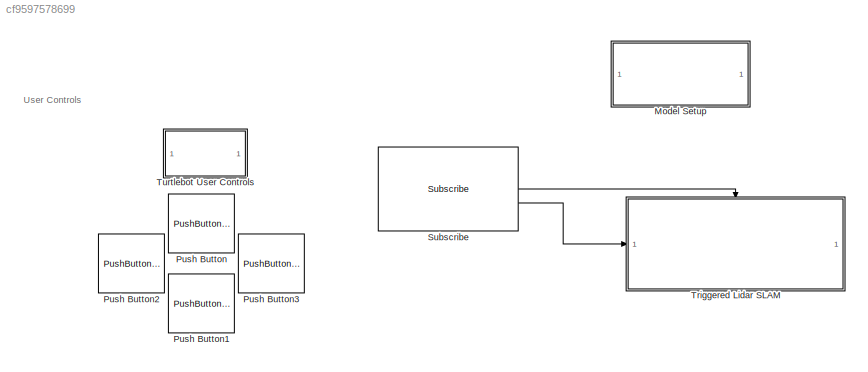
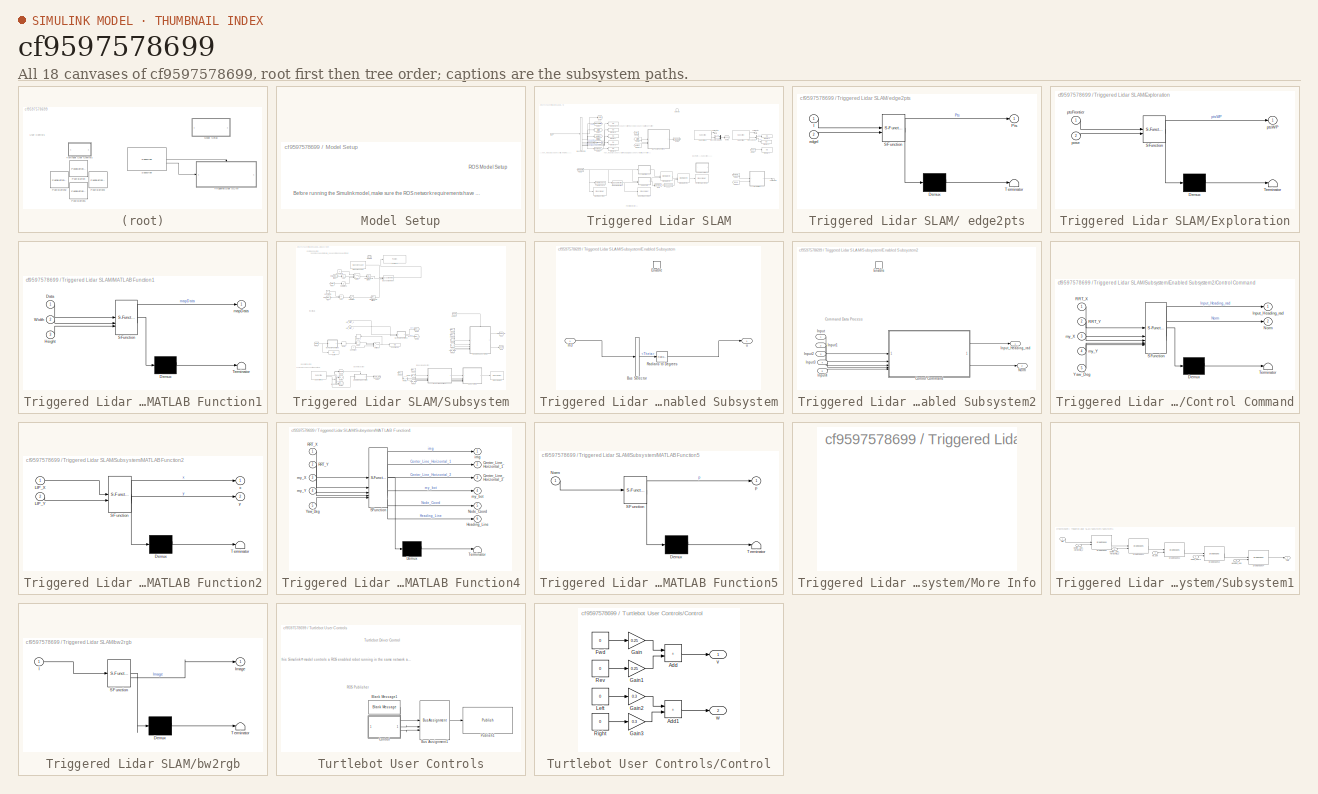
[diagram: thumbnail index - all 18 canvases of the model, root first then tree order]
MODEL slx_cf9597578699
KIND model
CONFIG AbsTol = auto
CONFIG EnableMultiTasking = off
CONFIG FixedStep = auto
CONFIG MaxStep = auto
CONFIG MinStep = auto
CONFIG RelTol = 1e-3
CONFIG SampleTimeConstraint = Unconstrained
CONFIG SolverName = FixedStepAuto
CONFIG StartTime = 0.0
CONFIG StopTime = inf
WORKSPACE source: mxarray member
WORKSPACE SL_ROS_VariableLengthArrays_MaxSizes: object (value not decoded)
BLOCK [SubSystem] Model Setup
BLOCK [PushButtonBlock] Push Button
  ButtonText = Fwd
  OffValue = 0.000000
BLOCK [PushButtonBlock] Push Button1
  ButtonText = Rev
  OffValue = 0.000000
  OnValue = -1
BLOCK [PushButtonBlock] Push Button2
  ButtonText = Left
  OffValue = 0.000000
BLOCK [PushButtonBlock] Push Button3
  ButtonText = Right
  OffValue = 0.000000
  OnValue = -1
BLOCK [Reference] Subscribe  REF=robotlib/Subscribe
  SourceBlock = robotlib/Subscribe
  SourceType = ROS Subscribe
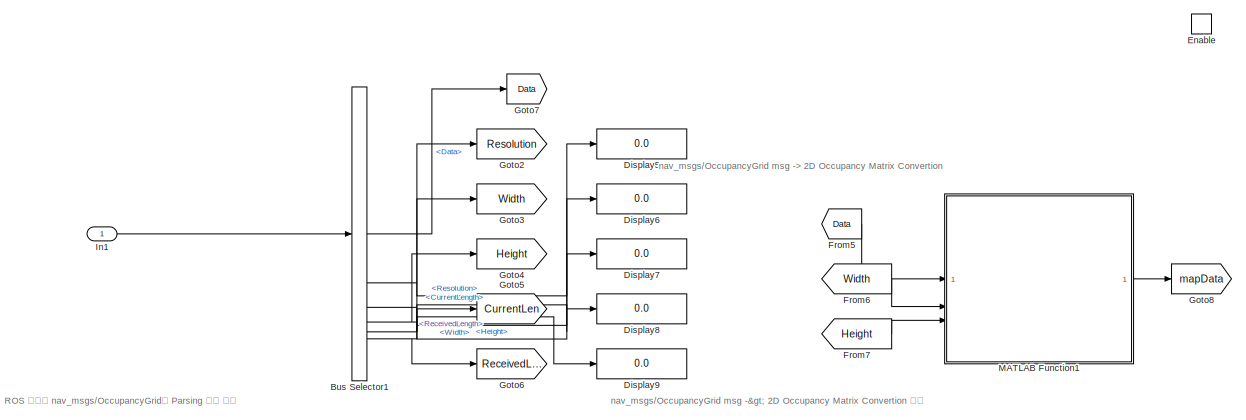
[diagram: Triggered Lidar SLAM - part 1/4, top left region]
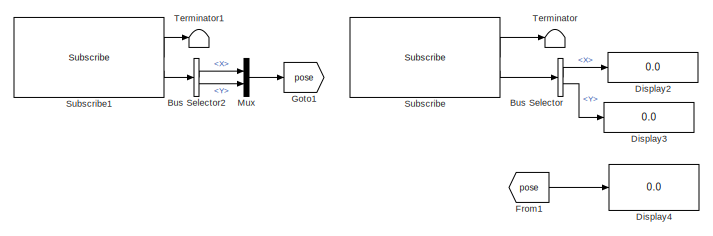
[diagram: Triggered Lidar SLAM - part 2/4, middle right region]
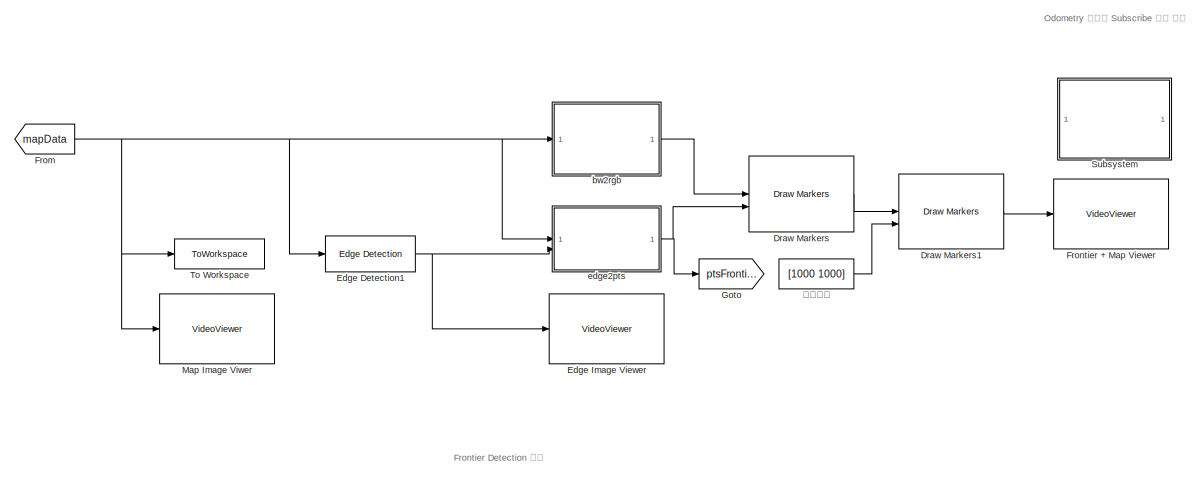
[diagram: Triggered Lidar SLAM - part 3/4, bottom center region]
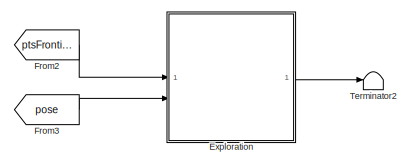
[diagram: Triggered Lidar SLAM - part 4/4, bottom right region]
BLOCK [SubSystem] Triggered Lidar SLAM
BLOCK [SubSystem] Triggered Lidar SLAM/ edge2pts
  ErrorFcn = Stateflow.Translate.translate
  PermitHierarchicalResolution = ExplicitOnly
  SFBlockType = MATLAB Function
  TreatAsAtomicUnit = on
BLOCK [Demux] Triggered Lidar SLAM/ edge2pts/ Demux 
  Outputs = 1
BLOCK [S-Function] Triggered Lidar SLAM/ edge2pts/ SFunction 
  EnableBusSupport = on
  FunctionName = sf_sfun
  PortCounts = [2 2]
  SFcnIsStateOwnerBlock = off
  SFunctionDeploymentMode = off
  Tag = Stateflow S-Function 8
BLOCK [Terminator] Triggered Lidar SLAM/ edge2pts/ Terminator 
BLOCK [Inport] Triggered Lidar SLAM/ edge2pts/I
BLOCK [Outport] Triggered Lidar SLAM/ edge2pts/Pts
BLOCK [Inport] Triggered Lidar SLAM/ edge2pts/edgeI
  Port = 2
BLOCK [BusSelector] Triggered Lidar SLAM/Bus Selector
  OutputSignals = Pose.Pose.Position.X,Pose.Pose.Position.Y
BLOCK [BusSelector] Triggered Lidar SLAM/Bus Selector1
  OutputSignals = Data,Info.Resolution,Info.Width,Info.Height,Data_SL_Info.CurrentLength,Data_SL_Info.ReceivedLength
BLOCK [BusSelector] Triggered Lidar SLAM/Bus Selector2
  OutputSignals = Pose.Position.X,Pose.Position.Y
BLOCK [Display] Triggered Lidar SLAM/Display2
  Decimation = 1
BLOCK [Display] Triggered Lidar SLAM/Display3
  Decimation = 1
BLOCK [Display] Triggered Lidar SLAM/Display4
  Decimation = 1
BLOCK [Display] Triggered Lidar SLAM/Display5
  Decimation = 1
BLOCK [Display] Triggered Lidar SLAM/Display6
  Decimation = 1
BLOCK [Display] Triggered Lidar SLAM/Display7
  Decimation = 1
BLOCK [Display] Triggered Lidar SLAM/Display8
  Decimation = 1
BLOCK [Display] Triggered Lidar SLAM/Display9
  Decimation = 1
BLOCK [Reference] Triggered Lidar SLAM/Draw Markers  REF=visiontextngfix/Draw Markers
  SourceBlock = visiontextngfix/Draw Markers
  SourceType = Draw Markers
BLOCK [Reference] Triggered Lidar SLAM/Draw Markers1  REF=visiontextngfix/Draw Markers
  SourceBlock = visiontextngfix/Draw Markers
  SourceType = Draw Markers
BLOCK [Reference] Triggered Lidar SLAM/Edge Detection1  REF=visionanalysis/Edge Detection
  SourceBlock = visionanalysis/Edge Detection
  SourceType = Edge Detection
BLOCK [VideoViewer] Triggered Lidar SLAM/Edge Image Viewer
  FigPos = [9.8 778 470.4 189.6]
  ScopeSpecificationString = vipscopes.VideoViewerScopeCfg('CurrentConfiguration', extmgr.ConfigurationSet(extmgr.Configuration('Core','General UI',true),extmgr.Configuration('Core','Source UI',true),extmgr.Configuration('Sources','WiredSimulink',true),extmgr.Configuration('Visuals','Video',true),extmgr.Configuration('Tools','Image Navigation Tools',true,'Magnification',4),extmgr.Configuration('Tools','Image Tool',true),extmg...<+122ch>
  colormapValue = gray(256)
BLOCK [EnablePort] Triggered Lidar SLAM/Enable
  PropagateVarSize = During execution
BLOCK [SubSystem] Triggered Lidar SLAM/Exploration
  ErrorFcn = Stateflow.Translate.translate
  PermitHierarchicalResolution = ExplicitOnly
  SFBlockType = MATLAB Function
  TreatAsAtomicUnit = on
BLOCK [Demux] Triggered Lidar SLAM/Exploration/ Demux 
  Outputs = 1
BLOCK [S-Function] Triggered Lidar SLAM/Exploration/ SFunction 
  EnableBusSupport = on
  FunctionName = sf_sfun
  PortCounts = [2 2]
  SFcnIsStateOwnerBlock = off
  SFunctionDeploymentMode = off
  Tag = Stateflow S-Function 1
BLOCK [Terminator] Triggered Lidar SLAM/Exploration/ Terminator 
BLOCK [Inport] Triggered Lidar SLAM/Exploration/pose
  Port = 2
BLOCK [Inport] Triggered Lidar SLAM/Exploration/ptsFrontier
BLOCK [Outport] Triggered Lidar SLAM/Exploration/ptsWP
BLOCK [From] Triggered Lidar SLAM/From
  GotoTag = mapData
BLOCK [From] Triggered Lidar SLAM/From1
  GotoTag = pose
BLOCK [From] Triggered Lidar SLAM/From2
  GotoTag = ptsFrontier
BLOCK [From] Triggered Lidar SLAM/From3
  GotoTag = pose
BLOCK [From] Triggered Lidar SLAM/From5
  GotoTag = Data
BLOCK [From] Triggered Lidar SLAM/From6
  GotoTag = Width
BLOCK [From] Triggered Lidar SLAM/From7
  GotoTag = Height
BLOCK [VideoViewer] Triggered Lidar SLAM/Frontier + Map Viewer
  FigPos = [762.6 702.8 577.6 476.8]
  ScopeSpecificationString = vipscopes.VideoViewerScopeCfg('CurrentConfiguration', extmgr.ConfigurationSet(extmgr.Configuration('Core','General UI',true),extmgr.Configuration('Core','Source UI',true),extmgr.Configuration('Sources','WiredSimulink',true),extmgr.Configuration('Visuals','Video',true),extmgr.Configuration('Tools','Image Navigation Tools',true,'Magnification',2.25900843523551),extmgr.Configuration('Tools','Image To...<+142ch>
  colormapValue = gray(256)
BLOCK [Goto] Triggered Lidar SLAM/Goto
  GotoTag = ptsFrontier
BLOCK [Goto] Triggered Lidar SLAM/Goto1
  GotoTag = pose
BLOCK [Goto] Triggered Lidar SLAM/Goto2
  GotoTag = Resolution
BLOCK [Goto] Triggered Lidar SLAM/Goto3
  GotoTag = Width
BLOCK [Goto] Triggered Lidar SLAM/Goto4
  GotoTag = Height
BLOCK [Goto] Triggered Lidar SLAM/Goto5
  GotoTag = CurrentLen
BLOCK [Goto] Triggered Lidar SLAM/Goto6
  GotoTag = ReceivedLen
BLOCK [Goto] Triggered Lidar SLAM/Goto7
  GotoTag = Data
BLOCK [Goto] Triggered Lidar SLAM/Goto8
  GotoTag = mapData
BLOCK [Inport] Triggered Lidar SLAM/In1
BLOCK [SubSystem] Triggered Lidar SLAM/MATLAB Function1
  ErrorFcn = Stateflow.Translate.translate
  LibrarySourceBlock = simulink/User-Defined\nFunctions/MATLAB Function
  PermitHierarchicalResolution = ExplicitOnly
  SFBlockType = MATLAB Function
  TreatAsAtomicUnit = on
BLOCK [Demux] Triggered Lidar SLAM/MATLAB Function1/ Demux 
  Outputs = 1
BLOCK [S-Function] Triggered Lidar SLAM/MATLAB Function1/ SFunction 
  EnableBusSupport = on
  FunctionName = sf_sfun
  PortCounts = [3 2]
  SFcnIsStateOwnerBlock = off
  SFunctionDeploymentMode = off
  Tag = Stateflow S-Function 2
BLOCK [Terminator] Triggered Lidar SLAM/MATLAB Function1/ Terminator 
BLOCK [Inport] Triggered Lidar SLAM/MATLAB Function1/Data
BLOCK [Inport] Triggered Lidar SLAM/MATLAB Function1/Height
  Port = 3
BLOCK [Inport] Triggered Lidar SLAM/MATLAB Function1/Width
  Port = 2
BLOCK [Outport] Triggered Lidar SLAM/MATLAB Function1/mapData
BLOCK [VideoViewer] Triggered Lidar SLAM/Map Image Viwer
  FigPos = [41.8 1064.4 794.4 767.2]
  ScopeSpecificationString = vipscopes.VideoViewerScopeCfg('CurrentConfiguration', extmgr.ConfigurationSet(extmgr.Configuration('Core','General UI',true),extmgr.Configuration('Core','Source UI',true),extmgr.Configuration('Sources','WiredSimulink',true),extmgr.Configuration('Visuals','Video',true),extmgr.Configuration('Tools','Image Navigation Tools',true,'Magnification',4),extmgr.Configuration('Tools','Image Tool',true),extmg...<+127ch>
  colormapValue = gray(256)
BLOCK [Mux] Triggered Lidar SLAM/Mux
  DisplayOption = bar
  Inputs = 2
BLOCK [Reference] Triggered Lidar SLAM/Subscribe  REF=robotlib/Subscribe
  SourceBlock = robotlib/Subscribe
  SourceType = ROS Subscribe
BLOCK [Reference] Triggered Lidar SLAM/Subscribe1  REF=robotlib/Subscribe
  SourceBlock = robotlib/Subscribe
  SourceType = ROS Subscribe
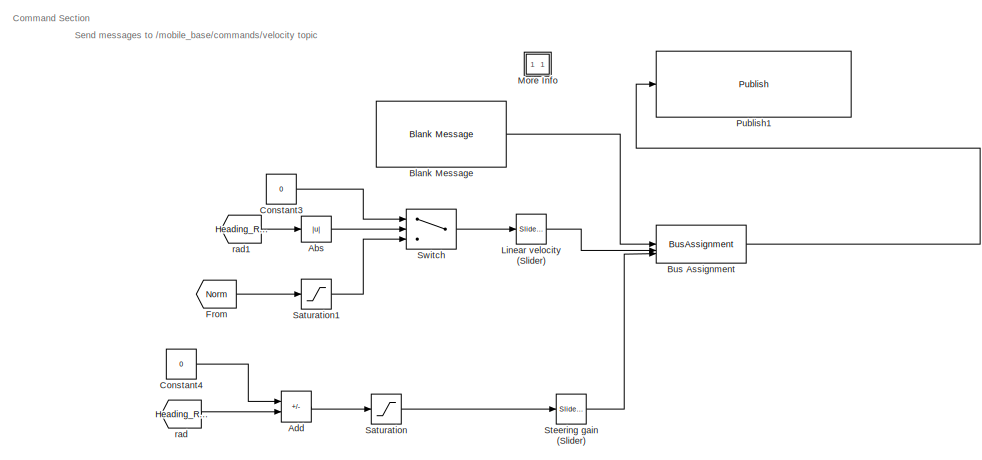
[diagram: Triggered Lidar SLAM/Subsystem - part 1/4, top left region]
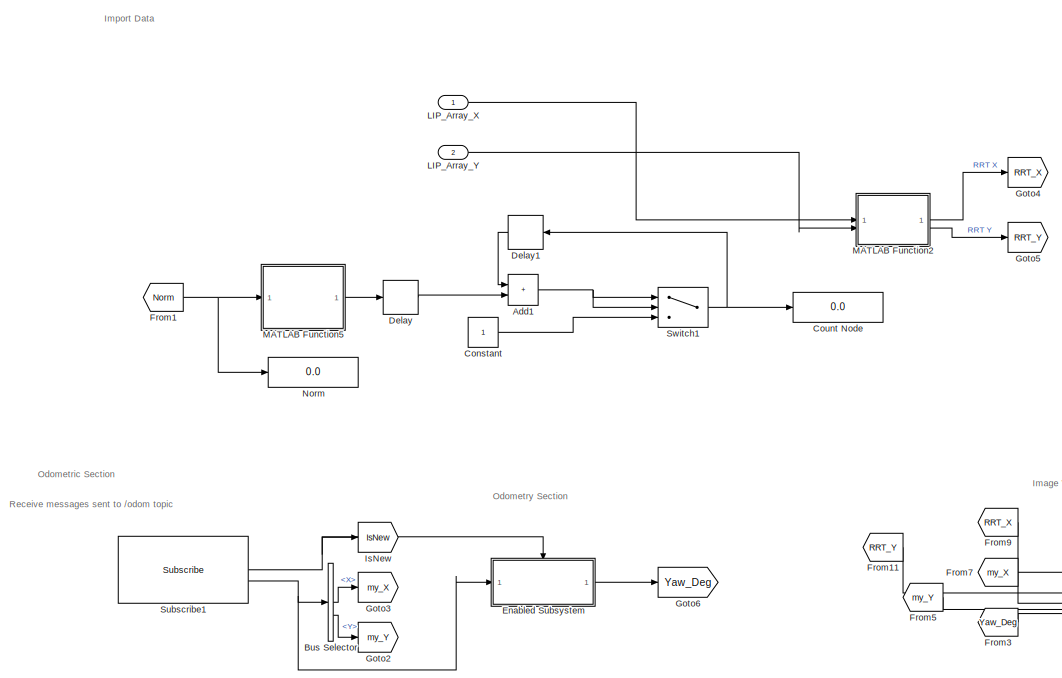
[diagram: Triggered Lidar SLAM/Subsystem - part 2/4, bottom left region]
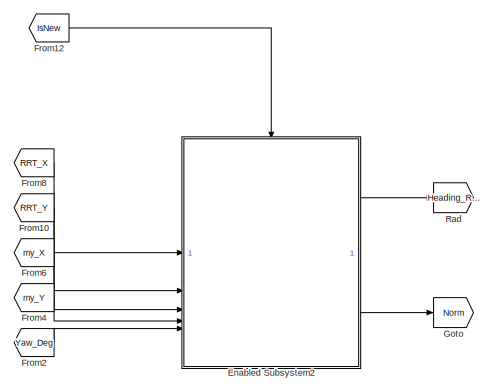
[diagram: Triggered Lidar SLAM/Subsystem - part 3/4, middle right region]
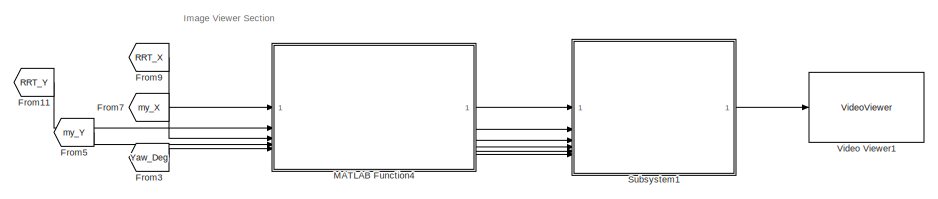
[diagram: Triggered Lidar SLAM/Subsystem - part 4/4, bottom right region]
BLOCK [SubSystem] Triggered Lidar SLAM/Subsystem
  Commented = on
BLOCK [Abs] Triggered Lidar SLAM/Subsystem/Abs
  SaturateOnIntegerOverflow = off
BLOCK [Sum] Triggered Lidar SLAM/Subsystem/Add
  IconShape = rectangular
  Inputs = +-
BLOCK [Sum] Triggered Lidar SLAM/Subsystem/Add1
  IconShape = rectangular
BLOCK [Reference] Triggered Lidar SLAM/Subsystem/Blank Message  REF=robotlib/Blank Message
  SourceBlock = robotlib/Blank Message
  SourceType = ROS Blank Message
BLOCK [BusAssignment] Triggered Lidar SLAM/Subsystem/Bus Assignment
  AssignedSignals = Linear.X,Angular.Z
  DialogController = Simulink.DDGSource_BusAssignment
BLOCK [BusSelector] Triggered Lidar SLAM/Subsystem/Bus Selector
  DialogController = Simulink.DDGSource_BusSelector
  OutputSignals = X,Y
BLOCK [Constant] Triggered Lidar SLAM/Subsystem/Constant
BLOCK [Constant] Triggered Lidar SLAM/Subsystem/Constant3
  NameLocation = left
  Value = 0
BLOCK [Constant] Triggered Lidar SLAM/Subsystem/Constant4
  Value = 0
BLOCK [Display] Triggered Lidar SLAM/Subsystem/Count Node
  Decimation = 1
BLOCK [Delay] Triggered Lidar SLAM/Subsystem/Delay
  DelayLength = 1
  InputPortMap = u0
BLOCK [Delay] Triggered Lidar SLAM/Subsystem/Delay1
  DelayLength = 1
  InputPortMap = u0
  NameLocation = top
BLOCK [SubSystem] Triggered Lidar SLAM/Subsystem/Enabled Subsystem
  TreatAsAtomicUnit = on
BLOCK [BusSelector] Triggered Lidar SLAM/Subsystem/Enabled Subsystem/Bus Selector
  OutputSignals = Theta
BLOCK [EnablePort] Triggered Lidar SLAM/Subsystem/Enabled Subsystem/Enable
BLOCK [Inport] Triggered Lidar SLAM/Subsystem/Enabled Subsystem/In3
BLOCK [Reference] Triggered Lidar SLAM/Subsystem/Enabled Subsystem/Radians to Degrees  REF=simulink_extras/Transformations/Radians
to Degrees
  SourceBlock = simulink_extras/Transformations/Radians\nto Degrees
  SourceType = RadiansToDegrees
BLOCK [Outport] Triggered Lidar SLAM/Subsystem/Enabled Subsystem/u
BLOCK [SubSystem] Triggered Lidar SLAM/Subsystem/Enabled Subsystem2
  TreatAsAtomicUnit = on
BLOCK [SubSystem] Triggered Lidar SLAM/Subsystem/Enabled Subsystem2/Control Command
  ErrorFcn = Stateflow.Translate.translate
  LibrarySourceBlock = simulink/User-Defined\nFunctions/MATLAB Function
  PermitHierarchicalResolution = ExplicitOnly
  SFBlockType = MATLAB Function
  TreatAsAtomicUnit = on
BLOCK [Demux] Triggered Lidar SLAM/Subsystem/Enabled Subsystem2/Control Command/ Demux 
  Outputs = 1
BLOCK [S-Function] Triggered Lidar SLAM/Subsystem/Enabled Subsystem2/Control Command/ SFunction 
  EnableBusSupport = on
  FunctionName = sf_sfun
  PortCounts = [5 3]
  SFcnIsStateOwnerBlock = off
  SFunctionDeploymentMode = off
  Tag = Stateflow S-Function 3
BLOCK [Terminator] Triggered Lidar SLAM/Subsystem/Enabled Subsystem2/Control Command/ Terminator 
BLOCK [Outport] Triggered Lidar SLAM/Subsystem/Enabled Subsystem2/Control Command/Input_Heading_rad
BLOCK [Outport] Triggered Lidar SLAM/Subsystem/Enabled Subsystem2/Control Command/Norm
  Port = 2
BLOCK [Inport] Triggered Lidar SLAM/Subsystem/Enabled Subsystem2/Control Command/RRT_X
BLOCK [Inport] Triggered Lidar SLAM/Subsystem/Enabled Subsystem2/Control Command/RRT_Y
  Port = 2
BLOCK [Inport] Triggered Lidar SLAM/Subsystem/Enabled Subsystem2/Control Command/Yaw_Deg
  Port = 5
BLOCK [Inport] Triggered Lidar SLAM/Subsystem/Enabled Subsystem2/Control Command/my_X
  Port = 3
BLOCK [Inport] Triggered Lidar SLAM/Subsystem/Enabled Subsystem2/Control Command/my_Y
  Port = 4
BLOCK [EnablePort] Triggered Lidar SLAM/Subsystem/Enabled Subsystem2/Enable
BLOCK [Inport] Triggered Lidar SLAM/Subsystem/Enabled Subsystem2/Input
BLOCK [Inport] Triggered Lidar SLAM/Subsystem/Enabled Subsystem2/Input1
  Port = 2
BLOCK [Inport] Triggered Lidar SLAM/Subsystem/Enabled Subsystem2/Input2
  Port = 3
BLOCK [Inport] Triggered Lidar SLAM/Subsystem/Enabled Subsystem2/Input3
  Port = 4
BLOCK [Inport] Triggered Lidar SLAM/Subsystem/Enabled Subsystem2/Input4
  Port = 5
BLOCK [Outport] Triggered Lidar SLAM/Subsystem/Enabled Subsystem2/Input_Heading_rad
BLOCK [Outport] Triggered Lidar SLAM/Subsystem/Enabled Subsystem2/Norm
  Port = 2
BLOCK [From] Triggered Lidar SLAM/Subsystem/From
  GotoTag = Norm
BLOCK [From] Triggered Lidar SLAM/Subsystem/From1
  GotoTag = Norm
BLOCK [From] Triggered Lidar SLAM/Subsystem/From10
  GotoTag = RRT_Y
BLOCK [From] Triggered Lidar SLAM/Subsystem/From11
  GotoTag = RRT_Y
BLOCK [From] Triggered Lidar SLAM/Subsystem/From12
  GotoTag = IsNew
BLOCK [From] Triggered Lidar SLAM/Subsystem/From2
  GotoTag = Yaw_Deg
BLOCK [From] Triggered Lidar SLAM/Subsystem/From3
  GotoTag = Yaw_Deg
BLOCK [From] Triggered Lidar SLAM/Subsystem/From4
  GotoTag = my_Y
BLOCK [From] Triggered Lidar SLAM/Subsystem/From5
  GotoTag = my_Y
BLOCK [From] Triggered Lidar SLAM/Subsystem/From6
  GotoTag = my_X
BLOCK [From] Triggered Lidar SLAM/Subsystem/From7
  GotoTag = my_X
BLOCK [From] Triggered Lidar SLAM/Subsystem/From8
  GotoTag = RRT_X
BLOCK [From] Triggered Lidar SLAM/Subsystem/From9
  GotoTag = RRT_X
BLOCK [Goto] Triggered Lidar SLAM/Subsystem/Goto
  GotoTag = Norm
BLOCK [Goto] Triggered Lidar SLAM/Subsystem/Goto2
  GotoTag = my_Y
BLOCK [Goto] Triggered Lidar SLAM/Subsystem/Goto3
  GotoTag = my_X
BLOCK [Goto] Triggered Lidar SLAM/Subsystem/Goto4
  GotoTag = RRT_X
BLOCK [Goto] Triggered Lidar SLAM/Subsystem/Goto5
  GotoTag = RRT_Y
BLOCK [Goto] Triggered Lidar SLAM/Subsystem/Goto6
  GotoTag = Yaw_Deg
BLOCK [Goto] Triggered Lidar SLAM/Subsystem/IsNew
  GotoTag = IsNew
BLOCK [Inport] Triggered Lidar SLAM/Subsystem/LIP_Array_X
BLOCK [Inport] Triggered Lidar SLAM/Subsystem/LIP_Array_Y
  Port = 2
BLOCK [Reference] Triggered Lidar SLAM/Subsystem/Linear velocity (Slider)  REF=simulink/Math
Operations/Slider
Gain
  SourceBlock = simulink/Math\nOperations/Slider\nGain
  SourceType = Slider Gain
BLOCK [SubSystem] Triggered Lidar SLAM/Subsystem/MATLAB Function2
  ErrorFcn = Stateflow.Translate.translate
  LibrarySourceBlock = simulink/User-Defined\nFunctions/MATLAB Function
  PermitHierarchicalResolution = ExplicitOnly
  SFBlockType = MATLAB Function
  TreatAsAtomicUnit = on
BLOCK [Demux] Triggered Lidar SLAM/Subsystem/MATLAB Function2/ Demux 
  Outputs = 1
BLOCK [S-Function] Triggered Lidar SLAM/Subsystem/MATLAB Function2/ SFunction 
  EnableBusSupport = on
  FunctionName = sf_sfun
  PortCounts = [2 3]
  SFcnIsStateOwnerBlock = off
  SFunctionDeploymentMode = off
  Tag = Stateflow S-Function 4
BLOCK [Terminator] Triggered Lidar SLAM/Subsystem/MATLAB Function2/ Terminator 
BLOCK [Inport] Triggered Lidar SLAM/Subsystem/MATLAB Function2/LIP_X
BLOCK [Inport] Triggered Lidar SLAM/Subsystem/MATLAB Function2/LIP_Y
  Port = 2
BLOCK [Outport] Triggered Lidar SLAM/Subsystem/MATLAB Function2/x
BLOCK [Outport] Triggered Lidar SLAM/Subsystem/MATLAB Function2/y
  Port = 2
BLOCK [SubSystem] Triggered Lidar SLAM/Subsystem/MATLAB Function4
  ErrorFcn = Stateflow.Translate.translate
  LibrarySourceBlock = simulink/User-Defined\nFunctions/MATLAB Function
  PermitHierarchicalResolution = ExplicitOnly
  SFBlockType = MATLAB Function
  TreatAsAtomicUnit = on
BLOCK [Demux] Triggered Lidar SLAM/Subsystem/MATLAB Function4/ Demux 
  Outputs = 1
BLOCK [S-Function] Triggered Lidar SLAM/Subsystem/MATLAB Function4/ SFunction 
  EnableBusSupport = on
  FunctionName = sf_sfun
  PortCounts = [5 7]
  SFcnIsStateOwnerBlock = off
  SFunctionDeploymentMode = off
  Tag = Stateflow S-Function 6
BLOCK [Terminator] Triggered Lidar SLAM/Subsystem/MATLAB Function4/ Terminator 
BLOCK [Outport] Triggered Lidar SLAM/Subsystem/MATLAB Function4/Center_Line_Horizontal_1
  Port = 2
BLOCK [Outport] Triggered Lidar SLAM/Subsystem/MATLAB Function4/Center_Line_Horizontal_2
  Port = 3
BLOCK [Outport] Triggered Lidar SLAM/Subsystem/MATLAB Function4/Heading_Line
  Port = 6
BLOCK [Outport] Triggered Lidar SLAM/Subsystem/MATLAB Function4/Node_Coord
  Port = 5
BLOCK [Inport] Triggered Lidar SLAM/Subsystem/MATLAB Function4/RRT_X
BLOCK [Inport] Triggered Lidar SLAM/Subsystem/MATLAB Function4/RRT_Y
  Port = 2
BLOCK [Inport] Triggered Lidar SLAM/Subsystem/MATLAB Function4/Yaw_Deg
  Port = 5
BLOCK [Outport] Triggered Lidar SLAM/Subsystem/MATLAB Function4/img
BLOCK [Inport] Triggered Lidar SLAM/Subsystem/MATLAB Function4/my_X
  Port = 3
BLOCK [Inport] Triggered Lidar SLAM/Subsystem/MATLAB Function4/my_Y
  Port = 4
BLOCK [Outport] Triggered Lidar SLAM/Subsystem/MATLAB Function4/my_bot
  Port = 4
BLOCK [SubSystem] Triggered Lidar SLAM/Subsystem/MATLAB Function5
  ErrorFcn = Stateflow.Translate.translate
  LibrarySourceBlock = simulink/User-Defined\nFunctions/MATLAB Function
  PermitHierarchicalResolution = ExplicitOnly
  SFBlockType = MATLAB Function
  TreatAsAtomicUnit = on
BLOCK [Demux] Triggered Lidar SLAM/Subsystem/MATLAB Function5/ Demux 
  Outputs = 1
BLOCK [S-Function] Triggered Lidar SLAM/Subsystem/MATLAB Function5/ SFunction 
  EnableBusSupport = on
  FunctionName = sf_sfun
  PortCounts = [1 2]
  SFcnIsStateOwnerBlock = off
  SFunctionDeploymentMode = off
  Tag = Stateflow S-Function 7
BLOCK [Terminator] Triggered Lidar SLAM/Subsystem/MATLAB Function5/ Terminator 
BLOCK [Inport] Triggered Lidar SLAM/Subsystem/MATLAB Function5/Norm
BLOCK [Outport] Triggered Lidar SLAM/Subsystem/MATLAB Function5/p
BLOCK [SubSystem] Triggered Lidar SLAM/Subsystem/More Info
  OpenFcn = showdemo(bdroot(gcb))
BLOCK [Display] Triggered Lidar SLAM/Subsystem/Norm
  Decimation = 1
BLOCK [Reference] Triggered Lidar SLAM/Subsystem/Publish1  REF=robotlib/Publish
  SourceBlock = robotlib/Publish
  SourceType = ROS Publish
BLOCK [Goto] Triggered Lidar SLAM/Subsystem/Rad
  GotoTag = Heading_Rad
BLOCK [Saturate] Triggered Lidar SLAM/Subsystem/Saturation
  LowerLimit = -0.3
  UpperLimit = 0.3
BLOCK [Saturate] Triggered Lidar SLAM/Subsystem/Saturation1
  LowerLimit = -0.3
  UpperLimit = 0.3
BLOCK [Reference] Triggered Lidar SLAM/Subsystem/Steering gain (Slider)  REF=simulink/Math
Operations/Slider
Gain
  SourceBlock = simulink/Math\nOperations/Slider\nGain
  SourceType = Slider Gain
BLOCK [Reference] Triggered Lidar SLAM/Subsystem/Subscribe1  REF=robotlib/Subscribe
  SourceBlock = robotlib/Subscribe
  SourceType = ROS Subscribe
BLOCK [SubSystem] Triggered Lidar SLAM/Subsystem/Subsystem1
BLOCK [Inport] Triggered Lidar SLAM/Subsystem/Subsystem1/Center_Line_Horizontal_1
  Port = 2
BLOCK [Inport] Triggered Lidar SLAM/Subsystem/Subsystem1/Center_Line_Horizontal_2
  Port = 3
BLOCK [Reference] Triggered Lidar SLAM/Subsystem/Subsystem1/Draw Shapes  REF=visiontextngfix/Draw Shapes
  SourceBlock = visiontextngfix/Draw Shapes
  SourceType = Draw Shapes
BLOCK [Reference] Triggered Lidar SLAM/Subsystem/Subsystem1/Draw Shapes1  REF=visiontextngfix/Draw Shapes
  SourceBlock = visiontextngfix/Draw Shapes
  SourceType = Draw Shapes
BLOCK [Reference] Triggered Lidar SLAM/Subsystem/Subsystem1/Draw Shapes2  REF=visiontextngfix/Draw Shapes
  SourceBlock = visiontextngfix/Draw Shapes
  SourceType = Draw Shapes
BLOCK [Reference] Triggered Lidar SLAM/Subsystem/Subsystem1/Draw Shapes3  REF=visiontextngfix/Draw Shapes
  SourceBlock = visiontextngfix/Draw Shapes
  SourceType = Draw Shapes
BLOCK [Reference] Triggered Lidar SLAM/Subsystem/Subsystem1/Draw Shapes4  REF=visiontextngfix/Draw Shapes
  SourceBlock = visiontextngfix/Draw Shapes
  SourceType = Draw Shapes
BLOCK [Inport] Triggered Lidar SLAM/Subsystem/Subsystem1/Heading_Line
  Port = 6
BLOCK [Inport] Triggered Lidar SLAM/Subsystem/Subsystem1/Node_Coord
  Port = 5
BLOCK [Outport] Triggered Lidar SLAM/Subsystem/Subsystem1/Out1
BLOCK [Inport] Triggered Lidar SLAM/Subsystem/Subsystem1/img
  NameLocation = right
BLOCK [Inport] Triggered Lidar SLAM/Subsystem/Subsystem1/my_bot
  Port = 4
BLOCK [Switch] Triggered Lidar SLAM/Subsystem/Switch
  InputSameDT = off
  SaturateOnIntegerOverflow = off
  Threshold = 5*(pi/180)
BLOCK [Switch] Triggered Lidar SLAM/Subsystem/Switch1
  Criteria = u2 > Threshold
  InputSameDT = off
  SaturateOnIntegerOverflow = off
  Threshold = 1
BLOCK [VideoViewer] Triggered Lidar SLAM/Subsystem/Video Viewer1
  Commented = on
  FigPos = [755 1049 776 766]
  ScopeSpecificationString = vipscopes.VideoViewerScopeCfg('CurrentConfiguration', extmgr.ConfigurationSet(extmgr.Configuration('Core','General UI',true),extmgr.Configuration('Core','Source UI',true),extmgr.Configuration('Sources','WiredSimulink',true),extmgr.Configuration('Visuals','Video',true),extmgr.Configuration('Tools','Image Navigation Tools',true,'Magnification',8),extmgr.Configuration('Tools','Image Tool',true),extmg...<+92ch>
  colormapValue = gray(256)
BLOCK [From] Triggered Lidar SLAM/Subsystem/rad
  GotoTag = Heading_Rad
BLOCK [From] Triggered Lidar SLAM/Subsystem/rad1
  GotoTag = Heading_Rad
BLOCK [Terminator] Triggered Lidar SLAM/Terminator
BLOCK [Terminator] Triggered Lidar SLAM/Terminator1
BLOCK [Terminator] Triggered Lidar SLAM/Terminator2
BLOCK [ToWorkspace] Triggered Lidar SLAM/To Workspace
  FixptAsFi = on
  MaxDataPoints = inf
  SampleTime = -1
  SaveFormat = Structure With Time
  VariableName = simout
BLOCK [SubSystem] Triggered Lidar SLAM/bw2rgb
  ErrorFcn = Stateflow.Translate.translate
  PermitHierarchicalResolution = ExplicitOnly
  SFBlockType = MATLAB Function
  TreatAsAtomicUnit = on
BLOCK [Demux] Triggered Lidar SLAM/bw2rgb/ Demux 
  Outputs = 1
BLOCK [S-Function] Triggered Lidar SLAM/bw2rgb/ SFunction 
  EnableBusSupport = on
  FunctionName = sf_sfun
  PortCounts = [1 2]
  SFcnIsStateOwnerBlock = off
  SFunctionDeploymentMode = off
  Tag = Stateflow S-Function 5
BLOCK [Terminator] Triggered Lidar SLAM/bw2rgb/ Terminator 
BLOCK [Inport] Triggered Lidar SLAM/bw2rgb/I
BLOCK [Outport] Triggered Lidar SLAM/bw2rgb/Image
BLOCK [Constant] Triggered Lidar SLAM/테스트용
  Value = [1000 1000]
BLOCK [SubSystem] Turtlebot User Controls
BLOCK [Reference] Turtlebot User Controls/Blank Message1  REF=robotlib/Blank Message
  SourceBlock = robotlib/Blank Message
  SourceType = ROS Blank Message
BLOCK [BusAssignment] Turtlebot User Controls/Bus Assignment1
  AssignedSignals = Linear.X,Angular.Z
  NameLocation = top
BLOCK [SubSystem] Turtlebot User Controls/Control
BLOCK [Sum] Turtlebot User Controls/Control/Add
  IconShape = rectangular
BLOCK [Sum] Turtlebot User Controls/Control/Add1
  IconShape = rectangular
BLOCK [Constant] Turtlebot User Controls/Control/Fwd
  Value = 0
BLOCK [Gain] Turtlebot User Controls/Control/Gain
  Gain = 0.25
BLOCK [Gain] Turtlebot User Controls/Control/Gain1
  Gain = 0.25
BLOCK [Gain] Turtlebot User Controls/Control/Gain2
  Gain = 0.3
BLOCK [Gain] Turtlebot User Controls/Control/Gain3
  Gain = 0.3
BLOCK [Constant] Turtlebot User Controls/Control/Left
  Value = 0
BLOCK [Constant] Turtlebot User Controls/Control/Rev
  Value = 0
BLOCK [Constant] Turtlebot User Controls/Control/Right
  Value = 0
BLOCK [Outport] Turtlebot User Controls/Control/v
BLOCK [Outport] Turtlebot User Controls/Control/w
  Port = 2
BLOCK [Reference] Turtlebot User Controls/Publish1  REF=robotlib/Publish
  SourceBlock = robotlib/Publish
  SourceType = ROS Publish
ANNOTATION (root): User Controls
ANNOTATION Model Setup: Before running the Simulink model, make sure the ROS network requirements have been set appropriately through the Simulink Toolstrip. Note that setting a Node Host IP address is optional and depends on the computer setup.
ANNOTATION Model Setup: ROS Model Setup
ANNOTATION Triggered Lidar SLAM: Odometry 정보를 Subscribe 하는 부분
ANNOTATION Triggered Lidar SLAM: ROS 메시지 nav_msgs/OccupancyGrid를 Parsing 하는 부분
ANNOTATION Triggered Lidar SLAM: nav_msgs/OccupancyGrid msg -> 2D Occupancy Matrix Convertion 부분
ANNOTATION Triggered Lidar SLAM: Frontier Detection 부분
ANNOTATION Triggered Lidar SLAM: nav_msgs/OccupancyGrid msg -> 2D Occupancy Matrix Convertion
ANNOTATION Triggered Lidar SLAM/Subsystem: Receive messages sent to /odom topic
ANNOTATION Triggered Lidar SLAM/Subsystem: Send messages to /mobile_base/commands/velocity topic
ANNOTATION Triggered Lidar SLAM/Subsystem: Command Section
ANNOTATION Triggered Lidar SLAM/Subsystem: Image Viewer Section
ANNOTATION Triggered Lidar SLAM/Subsystem: Import Data
ANNOTATION Triggered Lidar SLAM/Subsystem: Odometric Section
ANNOTATION Triggered Lidar SLAM/Subsystem: Odometry Section
ANNOTATION Triggered Lidar SLAM/Subsystem/Enabled Subsystem2: Command Data Process
ANNOTATION Turtlebot User Controls: This Simulink® model controls a ROS enabled robot running in the same network as the host computer. The model sets the robot /cmd_vel topic interactively using dashboard buttons to drive the robot around a map with the intent of recording lidar scans to later build an environment map. To learn more visit the documentation examples for interacting with ROS using Simulink
ANNOTATION Turtlebot User Controls: Turtlebot Driver Control
ANNOTATION Turtlebot User Controls: ROS Publisher
LINE Subscribe:1 -> Triggered Lidar SLAM:enable
LINE Subscribe:2 -> Triggered Lidar SLAM:1
NET Triggered Lidar SLAM/ edge2pts:1 -> Triggered Lidar SLAM/Draw Markers:2, Triggered Lidar SLAM/Goto:1
LINE Triggered Lidar SLAM/Bus Selector1:1 -> Triggered Lidar SLAM/Goto7:1
NET Triggered Lidar SLAM/Bus Selector1:2 -> Triggered Lidar SLAM/Display5:1, Triggered Lidar SLAM/Goto2:1
NET Triggered Lidar SLAM/Bus Selector1:3 -> Triggered Lidar SLAM/Display6:1, Triggered Lidar SLAM/Goto3:1
NET Triggered Lidar SLAM/Bus Selector1:4 -> Triggered Lidar SLAM/Display7:1, Triggered Lidar SLAM/Goto4:1
NET Triggered Lidar SLAM/Bus Selector1:5 -> Triggered Lidar SLAM/Display8:1, Triggered Lidar SLAM/Goto5:1
NET Triggered Lidar SLAM/Bus Selector1:6 -> Triggered Lidar SLAM/Display9:1, Triggered Lidar SLAM/Goto6:1
LINE Triggered Lidar SLAM/Bus Selector2:1 -> Triggered Lidar SLAM/Mux:1
LINE Triggered Lidar SLAM/Bus Selector2:2 -> Triggered Lidar SLAM/Mux:2
LINE Triggered Lidar SLAM/Bus Selector:1 -> Triggered Lidar SLAM/Display2:1
LINE Triggered Lidar SLAM/Bus Selector:2 -> Triggered Lidar SLAM/Display3:1
LINE Triggered Lidar SLAM/Draw Markers1:1 -> Triggered Lidar SLAM/Frontier + Map Viewer:1
LINE Triggered Lidar SLAM/Draw Markers:1 -> Triggered Lidar SLAM/Draw Markers1:1
NET Triggered Lidar SLAM/Edge Detection1:1 -> Triggered Lidar SLAM/ edge2pts:2, Triggered Lidar SLAM/Edge Image Viewer:1
LINE Triggered Lidar SLAM/Exploration:1 -> Triggered Lidar SLAM/Terminator2:1
LINE Triggered Lidar SLAM/From1:1 -> Triggered Lidar SLAM/Display4:1
LINE Triggered Lidar SLAM/From2:1 -> Triggered Lidar SLAM/Exploration:1
LINE Triggered Lidar SLAM/From3:1 -> Triggered Lidar SLAM/Exploration:2
LINE Triggered Lidar SLAM/From5:1 -> Triggered Lidar SLAM/MATLAB Function1:1
LINE Triggered Lidar SLAM/From6:1 -> Triggered Lidar SLAM/MATLAB Function1:2
LINE Triggered Lidar SLAM/From7:1 -> Triggered Lidar SLAM/MATLAB Function1:3
NET Triggered Lidar SLAM/From:1 -> Triggered Lidar SLAM/ edge2pts:1, Triggered Lidar SLAM/Edge Detection1:1, Triggered Lidar SLAM/Map Image Viwer:1, Triggered Lidar SLAM/To Workspace:1, Triggered Lidar SLAM/bw2rgb:1
LINE Triggered Lidar SLAM/In1:1 -> Triggered Lidar SLAM/Bus Selector1:1
LINE Triggered Lidar SLAM/MATLAB Function1:1 -> Triggered Lidar SLAM/Goto8:1
LINE Triggered Lidar SLAM/Mux:1 -> Triggered Lidar SLAM/Goto1:1
LINE Triggered Lidar SLAM/Subscribe1:1 -> Triggered Lidar SLAM/Terminator1:1
LINE Triggered Lidar SLAM/Subscribe1:2 -> Triggered Lidar SLAM/Bus Selector2:1
LINE Triggered Lidar SLAM/Subscribe:1 -> Triggered Lidar SLAM/Terminator:1
LINE Triggered Lidar SLAM/Subscribe:2 -> Triggered Lidar SLAM/Bus Selector:1
LINE Triggered Lidar SLAM/Subsystem/Abs:1 -> Triggered Lidar SLAM/Subsystem/Switch:2
NET Triggered Lidar SLAM/Subsystem/Add1:1 -> Triggered Lidar SLAM/Subsystem/Switch1:1, Triggered Lidar SLAM/Subsystem/Switch1:2
LINE Triggered Lidar SLAM/Subsystem/Add:1 -> Triggered Lidar SLAM/Subsystem/Saturation:1
LINE Triggered Lidar SLAM/Subsystem/Blank Message:1 -> Triggered Lidar SLAM/Subsystem/Bus Assignment:1
LINE Triggered Lidar SLAM/Subsystem/Bus Assignment:1 -> Triggered Lidar SLAM/Subsystem/Publish1:1
LINE Triggered Lidar SLAM/Subsystem/Bus Selector:1 -> Triggered Lidar SLAM/Subsystem/Goto3:1
LINE Triggered Lidar SLAM/Subsystem/Bus Selector:2 -> Triggered Lidar SLAM/Subsystem/Goto2:1
LINE Triggered Lidar SLAM/Subsystem/Constant3:1 -> Triggered Lidar SLAM/Subsystem/Switch:1
LINE Triggered Lidar SLAM/Subsystem/Constant4:1 -> Triggered Lidar SLAM/Subsystem/Add:1
LINE Triggered Lidar SLAM/Subsystem/Constant:1 -> Triggered Lidar SLAM/Subsystem/Switch1:3
LINE Triggered Lidar SLAM/Subsystem/Delay1:1 -> Triggered Lidar SLAM/Subsystem/Add1:1
LINE Triggered Lidar SLAM/Subsystem/Delay:1 -> Triggered Lidar SLAM/Subsystem/Add1:2
LINE Triggered Lidar SLAM/Subsystem/Enabled Subsystem/Bus Selector:1 -> Triggered Lidar SLAM/Subsystem/Enabled Subsystem/Radians to Degrees:1
LINE Triggered Lidar SLAM/Subsystem/Enabled Subsystem/In3:1 -> Triggered Lidar SLAM/Subsystem/Enabled Subsystem/Bus Selector:1
LINE Triggered Lidar SLAM/Subsystem/Enabled Subsystem/Radians to Degrees:1 -> Triggered Lidar SLAM/Subsystem/Enabled Subsystem/u:1
LINE Triggered Lidar SLAM/Subsystem/Enabled Subsystem2/Control Command:1 -> Triggered Lidar SLAM/Subsystem/Enabled Subsystem2/Input_Heading_rad:1
LINE Triggered Lidar SLAM/Subsystem/Enabled Subsystem2/Control Command:2 -> Triggered Lidar SLAM/Subsystem/Enabled Subsystem2/Norm:1
LINE Triggered Lidar SLAM/Subsystem/Enabled Subsystem2/Input1:1 -> Triggered Lidar SLAM/Subsystem/Enabled Subsystem2/Control Command:2
LINE Triggered Lidar SLAM/Subsystem/Enabled Subsystem2/Input2:1 -> Triggered Lidar SLAM/Subsystem/Enabled Subsystem2/Control Command:3
LINE Triggered Lidar SLAM/Subsystem/Enabled Subsystem2/Input3:1 -> Triggered Lidar SLAM/Subsystem/Enabled Subsystem2/Control Command:4
LINE Triggered Lidar SLAM/Subsystem/Enabled Subsystem2/Input4:1 -> Triggered Lidar SLAM/Subsystem/Enabled Subsystem2/Control Command:5
LINE Triggered Lidar SLAM/Subsystem/Enabled Subsystem2/Input:1 -> Triggered Lidar SLAM/Subsystem/Enabled Subsystem2/Control Command:1
LINE Triggered Lidar SLAM/Subsystem/Enabled Subsystem2:1 -> Triggered Lidar SLAM/Subsystem/Rad:1
LINE Triggered Lidar SLAM/Subsystem/Enabled Subsystem2:2 -> Triggered Lidar SLAM/Subsystem/Goto:1
LINE Triggered Lidar SLAM/Subsystem/Enabled Subsystem:1 -> Triggered Lidar SLAM/Subsystem/Goto6:1
LINE Triggered Lidar SLAM/Subsystem/From10:1 -> Triggered Lidar SLAM/Subsystem/Enabled Subsystem2:2
LINE Triggered Lidar SLAM/Subsystem/From11:1 -> Triggered Lidar SLAM/Subsystem/MATLAB Function4:2
LINE Triggered Lidar SLAM/Subsystem/From12:1 -> Triggered Lidar SLAM/Subsystem/Enabled Subsystem2:enable
NET Triggered Lidar SLAM/Subsystem/From1:1 -> Triggered Lidar SLAM/Subsystem/MATLAB Function5:1, Triggered Lidar SLAM/Subsystem/Norm:1
LINE Triggered Lidar SLAM/Subsystem/From2:1 -> Triggered Lidar SLAM/Subsystem/Enabled Subsystem2:5
LINE Triggered Lidar SLAM/Subsystem/From3:1 -> Triggered Lidar SLAM/Subsystem/MATLAB Function4:5
LINE Triggered Lidar SLAM/Subsystem/From4:1 -> Triggered Lidar SLAM/Subsystem/Enabled Subsystem2:4
LINE Triggered Lidar SLAM/Subsystem/From5:1 -> Triggered Lidar SLAM/Subsystem/MATLAB Function4:4
LINE Triggered Lidar SLAM/Subsystem/From6:1 -> Triggered Lidar SLAM/Subsystem/Enabled Subsystem2:3
LINE Triggered Lidar SLAM/Subsystem/From7:1 -> Triggered Lidar SLAM/Subsystem/MATLAB Function4:3
LINE Triggered Lidar SLAM/Subsystem/From8:1 -> Triggered Lidar SLAM/Subsystem/Enabled Subsystem2:1
LINE Triggered Lidar SLAM/Subsystem/From9:1 -> Triggered Lidar SLAM/Subsystem/MATLAB Function4:1
LINE Triggered Lidar SLAM/Subsystem/From:1 -> Triggered Lidar SLAM/Subsystem/Saturation1:1
LINE Triggered Lidar SLAM/Subsystem/LIP_Array_X:1 -> Triggered Lidar SLAM/Subsystem/MATLAB Function2:1
LINE Triggered Lidar SLAM/Subsystem/LIP_Array_Y:1 -> Triggered Lidar SLAM/Subsystem/MATLAB Function2:2
LINE Triggered Lidar SLAM/Subsystem/Linear velocity (Slider):1 -> Triggered Lidar SLAM/Subsystem/Bus Assignment:2
LINE Triggered Lidar SLAM/Subsystem/MATLAB Function2:1 -> Triggered Lidar SLAM/Subsystem/Goto4:1
LINE Triggered Lidar SLAM/Subsystem/MATLAB Function2:2 -> Triggered Lidar SLAM/Subsystem/Goto5:1
LINE Triggered Lidar SLAM/Subsystem/MATLAB Function4:1 -> Triggered Lidar SLAM/Subsystem/Subsystem1:1
LINE Triggered Lidar SLAM/Subsystem/MATLAB Function4:2 -> Triggered Lidar SLAM/Subsystem/Subsystem1:2
LINE Triggered Lidar SLAM/Subsystem/MATLAB Function4:3 -> Triggered Lidar SLAM/Subsystem/Subsystem1:3
LINE Triggered Lidar SLAM/Subsystem/MATLAB Function4:4 -> Triggered Lidar SLAM/Subsystem/Subsystem1:4
LINE Triggered Lidar SLAM/Subsystem/MATLAB Function4:5 -> Triggered Lidar SLAM/Subsystem/Subsystem1:5
LINE Triggered Lidar SLAM/Subsystem/MATLAB Function4:6 -> Triggered Lidar SLAM/Subsystem/Subsystem1:6
LINE Triggered Lidar SLAM/Subsystem/MATLAB Function5:1 -> Triggered Lidar SLAM/Subsystem/Delay:1
LINE Triggered Lidar SLAM/Subsystem/Saturation1:1 -> Triggered Lidar SLAM/Subsystem/Switch:3
LINE Triggered Lidar SLAM/Subsystem/Saturation:1 -> Triggered Lidar SLAM/Subsystem/Steering gain (Slider):1
LINE Triggered Lidar SLAM/Subsystem/Steering gain (Slider):1 -> Triggered Lidar SLAM/Subsystem/Bus Assignment:3
NET Triggered Lidar SLAM/Subsystem/Subscribe1:1 -> Triggered Lidar SLAM/Subsystem/Enabled Subsystem:enable, Triggered Lidar SLAM/Subsystem/IsNew:1
NET Triggered Lidar SLAM/Subsystem/Subscribe1:2 -> Triggered Lidar SLAM/Subsystem/Bus Selector:1, Triggered Lidar SLAM/Subsystem/Enabled Subsystem:1
LINE Triggered Lidar SLAM/Subsystem/Subsystem1/Center_Line_Horizontal_1:1 -> Triggered Lidar SLAM/Subsystem/Subsystem1/Draw Shapes:2
LINE Triggered Lidar SLAM/Subsystem/Subsystem1/Center_Line_Horizontal_2:1 -> Triggered Lidar SLAM/Subsystem/Subsystem1/Draw Shapes1:2
LINE Triggered Lidar SLAM/Subsystem/Subsystem1/Draw Shapes1:1 -> Triggered Lidar SLAM/Subsystem/Subsystem1/Draw Shapes2:1
LINE Triggered Lidar SLAM/Subsystem/Subsystem1/Draw Shapes2:1 -> Triggered Lidar SLAM/Subsystem/Subsystem1/Draw Shapes3:1
LINE Triggered Lidar SLAM/Subsystem/Subsystem1/Draw Shapes3:1 -> Triggered Lidar SLAM/Subsystem/Subsystem1/Draw Shapes4:1
LINE Triggered Lidar SLAM/Subsystem/Subsystem1/Draw Shapes4:1 -> Triggered Lidar SLAM/Subsystem/Subsystem1/Out1:1
LINE Triggered Lidar SLAM/Subsystem/Subsystem1/Draw Shapes:1 -> Triggered Lidar SLAM/Subsystem/Subsystem1/Draw Shapes1:1
LINE Triggered Lidar SLAM/Subsystem/Subsystem1/Heading_Line:1 -> Triggered Lidar SLAM/Subsystem/Subsystem1/Draw Shapes4:2
LINE Triggered Lidar SLAM/Subsystem/Subsystem1/Node_Coord:1 -> Triggered Lidar SLAM/Subsystem/Subsystem1/Draw Shapes3:2
LINE Triggered Lidar SLAM/Subsystem/Subsystem1/img:1 -> Triggered Lidar SLAM/Subsystem/Subsystem1/Draw Shapes:1
LINE Triggered Lidar SLAM/Subsystem/Subsystem1/my_bot:1 -> Triggered Lidar SLAM/Subsystem/Subsystem1/Draw Shapes2:2
LINE Triggered Lidar SLAM/Subsystem/Subsystem1:1 -> Triggered Lidar SLAM/Subsystem/Video Viewer1:1
NET Triggered Lidar SLAM/Subsystem/Switch1:1 -> Triggered Lidar SLAM/Subsystem/Count Node:1, Triggered Lidar SLAM/Subsystem/Delay1:1
LINE Triggered Lidar SLAM/Subsystem/Switch:1 -> Triggered Lidar SLAM/Subsystem/Linear velocity (Slider):1
LINE Triggered Lidar SLAM/Subsystem/rad1:1 -> Triggered Lidar SLAM/Subsystem/Abs:1
LINE Triggered Lidar SLAM/Subsystem/rad:1 -> Triggered Lidar SLAM/Subsystem/Add:2
LINE Triggered Lidar SLAM/bw2rgb:1 -> Triggered Lidar SLAM/Draw Markers:1
LINE Triggered Lidar SLAM/테스트용:1 -> Triggered Lidar SLAM/Draw Markers1:2
LINE Turtlebot User Controls/Blank Message1:1 -> Turtlebot User Controls/Bus Assignment1:1
LINE Turtlebot User Controls/Bus Assignment1:1 -> Turtlebot User Controls/Publish1:1
LINE Turtlebot User Controls/Control/Add1:1 -> Turtlebot User Controls/Control/w:1
LINE Turtlebot User Controls/Control/Add:1 -> Turtlebot User Controls/Control/v:1
LINE Turtlebot User Controls/Control/Fwd:1 -> Turtlebot User Controls/Control/Gain:1
LINE Turtlebot User Controls/Control/Gain1:1 -> Turtlebot User Controls/Control/Add:2
LINE Turtlebot User Controls/Control/Gain2:1 -> Turtlebot User Controls/Control/Add1:1
LINE Turtlebot User Controls/Control/Gain3:1 -> Turtlebot User Controls/Control/Add1:2
LINE Turtlebot User Controls/Control/Gain:1 -> Turtlebot User Controls/Control/Add:1
LINE Turtlebot User Controls/Control/Left:1 -> Turtlebot User Controls/Control/Gain2:1
LINE Turtlebot User Controls/Control/Rev:1 -> Turtlebot User Controls/Control/Gain1:1
LINE Turtlebot User Controls/Control/Right:1 -> Turtlebot User Controls/Control/Gain3:1
LINE Turtlebot User Controls/Control:1 -> Turtlebot User Controls/Bus Assignment1:2
LINE Turtlebot User Controls/Control:2 -> Turtlebot User Controls/Bus Assignment1:3
note: NET lines group one-source signal fan-out (src -> all destinations, sorted); 1:1 wires keep LINE
CHART Triggered Lidar SLAM/Exploration states=1 transitions=1
  STATE_LABEL 'eML_blk_kernel()'
  STATE_LABEL 'SCRIPT:\nfunction ptsWP = fcn(ptsFrontier, pose)\n\nptsWP = pose;\n'
CHART Triggered Lidar SLAM/MATLAB Function1 states=1 transitions=1
  STATE_LABEL 'eML_blk_kernel()'
  STATE_LABEL 'SCRIPT:\nfunction mapData = msg2matrix(Data,Width,Height)\n\nmapData = zeros(2048,2048,\'double\');\n\nif(Width ~= 0 && Height ~= 0)\n    Data(Data < 0) = 50;\n    for i = 1:Height\n        idxstart = Width*(i-1)+1;\n        idxend = Width*i;\n        mapData(i,:) = Data(idxstart:idxend);\n    end\n\n    mapData = (mapData./100);\n    \nelse\n    disp("msg2matrix : No Data")\nend\n\n'
CHART Triggered Lidar SLAM/Subsystem/Enabled
Subsystem2/Control Command states=1 transitions=1
  STATE_LABEL 'eML_blk_kernel()'
  STATE_LABEL 'SCRIPT:\nfunction [Input_Heading_rad,Norm]  = fcn(RRT_X, RRT_Y, my_X, my_Y, Yaw_Deg)\n\nVector = zeros(1,2);\n\nVector(1,1) = RRT_X - my_X;\nVector(1,2) = RRT_Y - my_Y;\n\nNorm = norm(Vector);\n\nCom_Vector = complex(Vector(1,1), Vector(1,2));\n\nHeading_Rad = angle(Com_Vector);\n\nHeading_Deg = rad2deg(Heading_Rad);\n\nRef_Heading = Yaw_Deg - Heading_Deg;\n\nInput_Heading = 0;\n\nif Ref_Heading > 180\n    Input_Headi...<+349ch>'
CHART Triggered Lidar SLAM/Subsystem/MATLAB Function2 states=1 transitions=1
  STATE_LABEL 'eML_blk_kernel()'
  STATE_LABEL 'SCRIPT:\nfunction [x,y] = fcn(LIP_X, LIP_Y)\n\nx = LIP_X(1,1);\ny = LIP_Y(1,1);\n\n\n'
CHART Triggered Lidar SLAM/bw2rgb states=1 transitions=1
  STATE_LABEL 'eML_blk_kernel()'
  STATE_LABEL 'SCRIPT:\nfunction Image = bw2rgb(I)\nsz = size(I);\nImage = zeros(sz(1),sz(2),3);\n\nR = I;\nG = I;\nB = I;\n\nImage(:,:,1) = R;\nImage(:,:,2) = G;\nImage(:,:,3) = B;'
CHART Triggered Lidar SLAM/Subsystem/MATLAB Function4 states=1 transitions=1
  STATE_LABEL 'eML_blk_kernel()'
  STATE_LABEL 'SCRIPT:\nfunction [img,Center_Line_Horizontal_1,Center_Line_Horizontal_2,my_bot,Node_Coord,Heading_Line] = fcn(RRT_X, RRT_Y, my_X, my_Y, Yaw_Deg)\n\nimg = ones(2048);\n\ncenter = 2048/2;\n\nCenter_Line_Horizontal_1 = [center 1 center 2048];\nCenter_Line_Horizontal_2 = [1 center 2048 center];\n\nmy_col = center - my_Y;\nmy_row = center + my_X;\n\nNode_col = center - RRT_Y;\nNode_row = center + RRT_X;\n\nmy_bot = [...<+349ch>'
CHART Triggered Lidar SLAM/Subsystem/MATLAB Function5 states=1 transitions=1
  STATE_LABEL 'eML_blk_kernel()'
  STATE_LABEL 'SCRIPT:\nfunction p = fcn(Norm)\np = 0;\n\nif Norm < 0.5\n    p = 1;\nend\n\n'
CHART Triggered Lidar SLAM/ edge2pts states=1 transitions=1
  STATE_LABEL 'eML_blk_kernel()'
  STATE_LABEL 'SCRIPT:\nfunction Pts = edge2pts(I,edgeI)\n\nMAXSIZE = 4000;\n\n[x,y] = find(edgeI == 1);\n\nPts = zeros(MAXSIZE,2);\nsz = length(x);\n\nif(sz > MAXSIZE)\n    disp("PTS OverFlow")\n    sz = MAXSIZE;\nend\n\nfor i = 1:1:sz\n    if(I(y(i),x(i)) == 0.5 && ~isNearWall(I,y(i),x(i)))\n        Pts(i,1) = y(i);\n        Pts(i,2) = x(i);\n    end\nend\n\nend\n\nfunction y = isNearWall(I,x,y)\n     for i = -1:1:2\n         for j = -...<+161ch>'
CHART  states=0 transitions=0
CHART  states=0 transitions=0
CHART  states=0 transitions=0
CHART  states=0 transitions=0
CHART  states=0 transitions=0
CHART  states=0 transitions=0
CHART  states=0 transitions=0
CHART  states=0 transitions=0
